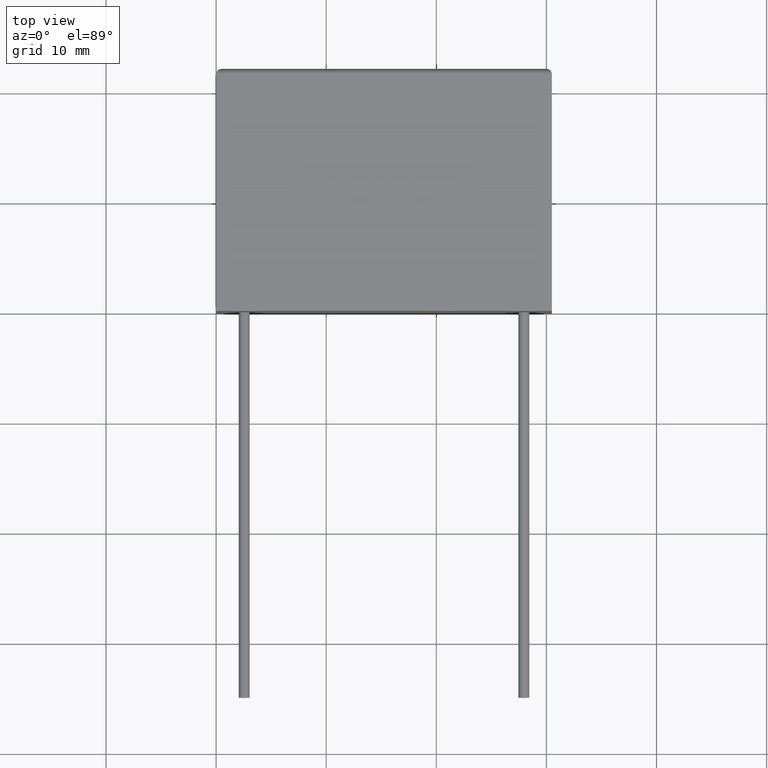
[diagram: clean part render]
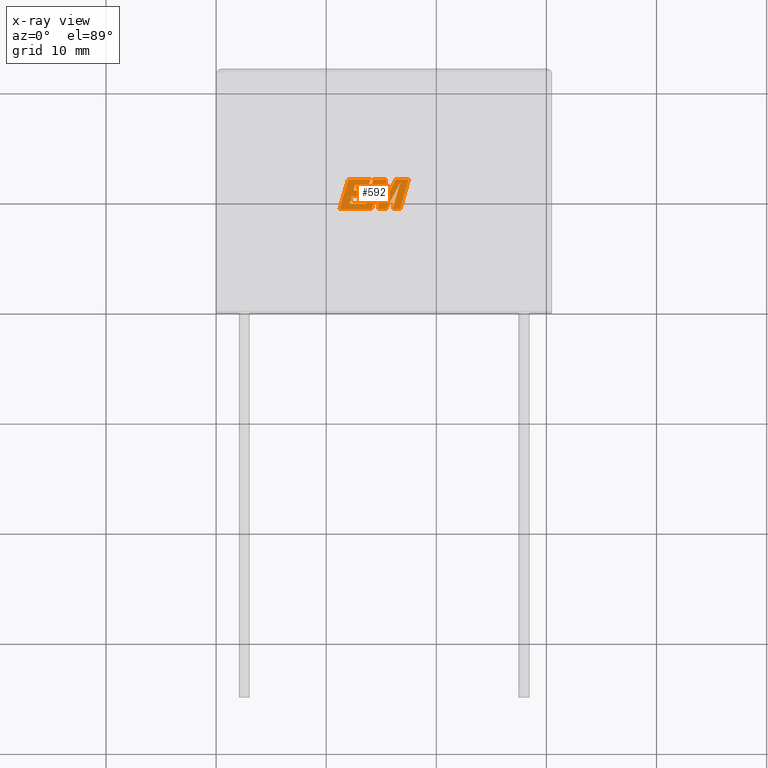
[diagram: x-ray — body ghosted, one internal face saturated and labeled with its STEP entity id]
A machine part, top view, then the same camera in x-ray: the body is ghosted and one INTERNAL B-rep face — a face not visible from any outside direction — is saturated and labeled: STEP entity #592.
In plain terms, the highlighted planar face has unit normal (0, 0, -1).
Its self-contained STEP definition (entity closure, byte-faithful):
#14 = DIRECTION ( 'NONE',  ( 0.4668459304955088200, 0.8843386665637675800, 0.0000000000000000000 ) ) ;
#17 = CARTESIAN_POINT ( 'NONE',  ( 12.13041814687692700, 9.744555796335491800, 15.30000000000000100 ) ) ;
#32 = ORIENTED_EDGE ( 'NONE', *, *, #1168, .F. ) ;
#42 = VECTOR ( 'NONE', #1255, 1000.000000000000000 ) ;
#45 = CARTESIAN_POINT ( 'NONE',  ( 16.72163530528773000, 9.224599999999998800, 15.30000000000000100 ) ) ;
#46 = LINE ( 'NONE', #535, #1789 ) ;
#60 = ORIENTED_EDGE ( 'NONE', *, *, #332, .F. ) ;
#80 = DIRECTION ( 'NONE',  ( -1.000000000000000000, 0.0000000000000000000, 0.0000000000000000000 ) ) ;
#106 = VECTOR ( 'NONE', #954, 1000.000000000000000 ) ;
#129 = CARTESIAN_POINT ( 'NONE',  ( 16.72163530528773000, 9.224599999999998800, 15.30000000000000100 ) ) ;
#165 = VECTOR ( 'NONE', #2228, 1000.000000000000000 ) ;
#169 = EDGE_CURVE ( 'NONE', #2115, #1561, #1290, .T. ) ;
#174 = VERTEX_POINT ( 'NONE', #1732 ) ;
#179 = VERTEX_POINT ( 'NONE', #982 ) ;
#187 = CARTESIAN_POINT ( 'NONE',  ( 11.98990460110053400, 11.95760467011252200, 15.30000000000000100 ) ) ;
#194 = VERTEX_POINT ( 'NONE', #187 ) ;
#245 = DIRECTION ( 'NONE',  ( -0.2762517575166415500, -0.9610853065513833600, 0.0000000000000000000 ) ) ;
#269 = EDGE_CURVE ( 'NONE', #716, #2215, #1105, .T. ) ;
#279 = LINE ( 'NONE', #715, #1075 ) ;
#282 = VERTEX_POINT ( 'NONE', #594 ) ;
#297 = CARTESIAN_POINT ( 'NONE',  ( 17.50739429965959800, 11.95760467011252200, 15.30000000000000100 ) ) ;
#318 = ORIENTED_EDGE ( 'NONE', *, *, #595, .F. ) ;
#332 = EDGE_CURVE ( 'NONE', #179, #773, #1083, .T. ) ;
#360 = DIRECTION ( 'NONE',  ( 1.000000000000000000, 1.410797975395186500E-015, 0.0000000000000000000 ) ) ;
#393 = VECTOR ( 'NONE', #1602, 1000.000000000000000 ) ;
#409 = ORIENTED_EDGE ( 'NONE', *, *, #1941, .F. ) ;
#434 = CARTESIAN_POINT ( 'NONE',  ( 13.49682907209673000, 10.42381401580202300, 15.30000000000000100 ) ) ;
#446 = CARTESIAN_POINT ( 'NONE',  ( 12.32395771051506900, 10.42381401580202300, 15.30000000000000100 ) ) ;
#447 = VECTOR ( 'NONE', #708, 1000.000000000000100 ) ;
#448 = CARTESIAN_POINT ( 'NONE',  ( 13.64114028129114900, 10.92905282770972900, 15.30000000000000100 ) ) ;
#481 = EDGE_CURVE ( 'NONE', #1561, #194, #1521, .T. ) ;
#491 = ORIENTED_EDGE ( 'NONE', *, *, #2111, .F. ) ;
#498 = CARTESIAN_POINT ( 'NONE',  ( 16.30871703926905200, 11.95760467011252200, 15.30000000000000100 ) ) ;
#504 = PLANE ( 'NONE',  #1737 ) ;
#518 = VECTOR ( 'NONE', #1455, 1000.000000000000000 ) ;
#529 = VERTEX_POINT ( 'NONE', #448 ) ;
#535 = CARTESIAN_POINT ( 'NONE',  ( 16.02713657230754400, 9.224599999999998800, 15.30000000000000100 ) ) ;
#560 = ORIENTED_EDGE ( 'NONE', *, *, #169, .F. ) ;
#592 = ADVANCED_FACE ( 'NONE', ( #707 ), #504, .T. ) ;
#594 = CARTESIAN_POINT ( 'NONE',  ( 11.20345587573266000, 9.224599999999998800, 15.30000000000000100 ) ) ;
#595 = EDGE_CURVE ( 'NONE', #773, #1935, #1920, .T. ) ;
#624 = VERTEX_POINT ( 'NONE', #297 ) ;
#681 = CARTESIAN_POINT ( 'NONE',  ( 15.44544762703744000, 11.95760467011252200, 15.30000000000000100 ) ) ;
#698 = LINE ( 'NONE', #1725, #2182 ) ;
#707 = FACE_OUTER_BOUND ( 'NONE', #970, .T. ) ;
#708 = DIRECTION ( 'NONE',  ( 0.2759782365590722800, 0.9611638845408959600, 0.0000000000000000000 ) ) ;
#715 = CARTESIAN_POINT ( 'NONE',  ( 15.43857353521400100, 9.224599999999998800, 15.30000000000000100 ) ) ;
#716 = VERTEX_POINT ( 'NONE', #2413 ) ;
#732 = LINE ( 'NONE', #1901, #1159 ) ;
#747 = ORIENTED_EDGE ( 'NONE', *, *, #1887, .F. ) ;
#773 = VERTEX_POINT ( 'NONE', #2278 ) ;
#778 = ORIENTED_EDGE ( 'NONE', *, *, #1532, .F. ) ;
#780 = EDGE_CURVE ( 'NONE', #174, #2464, #842, .T. ) ;
#788 = DIRECTION ( 'NONE',  ( 0.2732148821746286400, 0.9619530280415482500, 0.0000000000000000000 ) ) ;
#789 = CARTESIAN_POINT ( 'NONE',  ( 14.84636241446146900, 11.65772222130387300, 15.30000000000000100 ) ) ;
#819 = DIRECTION ( 'NONE',  ( -0.05596501978069497200, -0.9984327301130238000, 0.0000000000000000000 ) ) ;
#835 = VECTOR ( 'NONE', #788, 1000.000000000000100 ) ;
#842 = LINE ( 'NONE', #935, #1355 ) ;
#874 = VERTEX_POINT ( 'NONE', #1844 ) ;
#885 = VECTOR ( 'NONE', #819, 1000.000000000000100 ) ;
#902 = VERTEX_POINT ( 'NONE', #1872 ) ;
#910 = DIRECTION ( 'NONE',  ( 1.000000000000000000, -2.014110522645507200E-015, 0.0000000000000000000 ) ) ;
#916 = LINE ( 'NONE', #2381, #1873 ) ;
#920 = EDGE_CURVE ( 'NONE', #1677, #624, #1918, .T. ) ;
#928 = VECTOR ( 'NONE', #245, 1000.000000000000100 ) ;
#935 = CARTESIAN_POINT ( 'NONE',  ( 12.46810271999845600, 10.92905282770972900, 15.30000000000000100 ) ) ;
#954 = DIRECTION ( 'NONE',  ( 0.2740217765954059400, 0.9617234872620598100, 0.0000000000000000000 ) ) ;
#967 = CARTESIAN_POINT ( 'NONE',  ( 14.14774192864402900, 9.224599999999998800, 15.30000000000000100 ) ) ;
#970 = EDGE_LOOP ( 'NONE', ( #1284, #2088, #1433, #2196, #2427, #409, #2168, #491, #747, #2392, #1439, #560, #1796, #1144, #2338, #778, #2110, #1716, #32, #1705, #2404, #318, #60 ) ) ;
#982 = CARTESIAN_POINT ( 'NONE',  ( 16.30871703926905200, 11.95760467011252200, 15.30000000000000100 ) ) ;
#1008 = LINE ( 'NONE', #434, #2154 ) ;
#1020 = CARTESIAN_POINT ( 'NONE',  ( 13.64544485380194100, 9.744555796335491800, 15.30000000000000100 ) ) ;
#1058 = VERTEX_POINT ( 'NONE', #17 ) ;
#1075 = VECTOR ( 'NONE', #14, 1000.000000000000000 ) ;
#1083 = LINE ( 'NONE', #498, #518 ) ;
#1088 = DIRECTION ( 'NONE',  ( 0.05375259206908614100, 0.9985542843760946100, 0.0000000000000000000 ) ) ;
#1093 = LINE ( 'NONE', #1975, #885 ) ;
#1105 = LINE ( 'NONE', #2166, #928 ) ;
#1136 = VECTOR ( 'NONE', #2071, 1000.000000000000200 ) ;
#1144 = ORIENTED_EDGE ( 'NONE', *, *, #780, .F. ) ;
#1149 = DIRECTION ( 'NONE',  ( 1.000000000000000000, 0.0000000000000000000, 0.0000000000000000000 ) ) ;
#1159 = VECTOR ( 'NONE', #1149, 1000.000000000000000 ) ;
#1164 = CARTESIAN_POINT ( 'NONE',  ( 12.13041814687692700, 9.744555796335491800, 15.30000000000000100 ) ) ;
#1168 = EDGE_CURVE ( 'NONE', #2215, #1058, #1668, .T. ) ;
#1223 = VECTOR ( 'NONE', #2388, 1000.000000000000000 ) ;
#1224 = VECTOR ( 'NONE', #1088, 1000.000000000000000 ) ;
#1228 = CARTESIAN_POINT ( 'NONE',  ( 14.00895686204292000, 11.95760467011252200, 15.30000000000000100 ) ) ;
#1235 = VERTEX_POINT ( 'NONE', #1894 ) ;
#1255 = DIRECTION ( 'NONE',  ( -1.000000000000000000, 0.0000000000000000000, 0.0000000000000000000 ) ) ;
#1276 = EDGE_CURVE ( 'NONE', #902, #874, #279, .T. ) ;
#1284 = ORIENTED_EDGE ( 'NONE', *, *, #2371, .F. ) ;
#1290 = LINE ( 'NONE', #1943, #835 ) ;
#1308 = CARTESIAN_POINT ( 'NONE',  ( 12.32395771051506900, 10.42381401580202300, 15.30000000000000100 ) ) ;
#1355 = VECTOR ( 'NONE', #1728, 1000.000000000000100 ) ;
#1398 = EDGE_CURVE ( 'NONE', #1534, #1677, #46, .T. ) ;
#1431 = EDGE_CURVE ( 'NONE', #529, #174, #2482, .T. ) ;
#1433 = ORIENTED_EDGE ( 'NONE', *, *, #1398, .F. ) ;
#1439 = ORIENTED_EDGE ( 'NONE', *, *, #481, .F. ) ;
#1455 = DIRECTION ( 'NONE',  ( -0.4443210308329521600, -0.8958676361826800600, 0.0000000000000000000 ) ) ;
#1457 = CARTESIAN_POINT ( 'NONE',  ( 13.64114028129114900, 10.92905282770972900, 15.30000000000000100 ) ) ;
#1469 = CARTESIAN_POINT ( 'NONE',  ( 15.34034408245423200, 10.00511101898241300, 15.30000000000000100 ) ) ;
#1491 = DIRECTION ( 'NONE',  ( 1.000000000000000000, 0.0000000000000000000, 0.0000000000000000000 ) ) ;
#1514 = LINE ( 'NONE', #1164, #106 ) ;
#1521 = LINE ( 'NONE', #1228, #1606 ) ;
#1529 = VERTEX_POINT ( 'NONE', #789 ) ;
#1532 = EDGE_CURVE ( 'NONE', #2080, #529, #1008, .T. ) ;
#1534 = VERTEX_POINT ( 'NONE', #1573 ) ;
#1556 = VERTEX_POINT ( 'NONE', #1308 ) ;
#1561 = VERTEX_POINT ( 'NONE', #1751 ) ;
#1573 = CARTESIAN_POINT ( 'NONE',  ( 16.02713657230754400, 9.224599999999998800, 15.30000000000000100 ) ) ;
#1574 = EDGE_CURVE ( 'NONE', #194, #282, #698, .T. ) ;
#1602 = DIRECTION ( 'NONE',  ( 1.000000000000000000, 0.0000000000000000000, 0.0000000000000000000 ) ) ;
#1604 = EDGE_CURVE ( 'NONE', #1058, #1556, #1514, .T. ) ;
#1606 = VECTOR ( 'NONE', #1631, 1000.000000000000000 ) ;
#1620 = CARTESIAN_POINT ( 'NONE',  ( 12.61602046292478200, 11.43739126422981500, 15.30000000000000100 ) ) ;
#1631 = DIRECTION ( 'NONE',  ( -1.000000000000000000, 0.0000000000000000000, 0.0000000000000000000 ) ) ;
#1633 = VECTOR ( 'NONE', #80, 1000.000000000000000 ) ;
#1639 = EDGE_CURVE ( 'NONE', #1556, #2080, #2481, .T. ) ;
#1668 = LINE ( 'NONE', #1765, #1223 ) ;
#1677 = VERTEX_POINT ( 'NONE', #45 ) ;
#1687 = CARTESIAN_POINT ( 'NONE',  ( 13.86120531882747800, 11.43739126422981500, 15.30000000000000100 ) ) ;
#1692 = EDGE_CURVE ( 'NONE', #874, #1534, #916, .T. ) ;
#1705 = ORIENTED_EDGE ( 'NONE', *, *, #269, .F. ) ;
#1716 = ORIENTED_EDGE ( 'NONE', *, *, #1604, .F. ) ;
#1725 = CARTESIAN_POINT ( 'NONE',  ( 11.98990460110053400, 11.95760467011252200, 15.30000000000000100 ) ) ;
#1728 = DIRECTION ( 'NONE',  ( 0.2793947940878305800, 0.9601763114327590600, 0.0000000000000000000 ) ) ;
#1732 = CARTESIAN_POINT ( 'NONE',  ( 12.46810271999845600, 10.92905282770972900, 15.30000000000000100 ) ) ;
#1737 = AXIS2_PLACEMENT_3D ( 'NONE', #2236, #2253, #1864 ) ;
#1751 = CARTESIAN_POINT ( 'NONE',  ( 14.00895686204292000, 11.95760467011252200, 15.30000000000000100 ) ) ;
#1765 = CARTESIAN_POINT ( 'NONE',  ( 13.64544485380194100, 9.744555796335491800, 15.30000000000000100 ) ) ;
#1788 = EDGE_CURVE ( 'NONE', #1935, #716, #2065, .T. ) ;
#1789 = VECTOR ( 'NONE', #360, 1000.000000000000000 ) ;
#1796 = ORIENTED_EDGE ( 'NONE', *, *, #2296, .F. ) ;
#1798 = VERTEX_POINT ( 'NONE', #2407 ) ;
#1844 = CARTESIAN_POINT ( 'NONE',  ( 16.72921401211593600, 11.66943930093434600, 15.30000000000000100 ) ) ;
#1864 = DIRECTION ( 'NONE',  ( -1.000000000000000000, 0.0000000000000000000, 0.0000000000000000000 ) ) ;
#1870 = LINE ( 'NONE', #1926, #2268 ) ;
#1872 = CARTESIAN_POINT ( 'NONE',  ( 15.43857353521400100, 9.224599999999998800, 15.30000000000000100 ) ) ;
#1873 = VECTOR ( 'NONE', #1988, 1000.000000000000100 ) ;
#1887 = EDGE_CURVE ( 'NONE', #282, #1235, #1870, .T. ) ;
#1894 = CARTESIAN_POINT ( 'NONE',  ( 14.14774192864402900, 9.224599999999998800, 15.30000000000000100 ) ) ;
#1901 = CARTESIAN_POINT ( 'NONE',  ( 12.61602046292478200, 11.43739126422981500, 15.30000000000000100 ) ) ;
#1902 = DIRECTION ( 'NONE',  ( -0.2765379750249970000, -0.9610029908221274800, 0.0000000000000000000 ) ) ;
#1912 = CARTESIAN_POINT ( 'NONE',  ( 14.70997893149140800, 9.224599999999998800, 15.30000000000000100 ) ) ;
#1918 = LINE ( 'NONE', #129, #1136 ) ;
#1920 = LINE ( 'NONE', #1469, #1224 ) ;
#1926 = CARTESIAN_POINT ( 'NONE',  ( 13.66127537410956400, 9.224599999999998800, 15.30000000000000100 ) ) ;
#1935 = VERTEX_POINT ( 'NONE', #681 ) ;
#1941 = EDGE_CURVE ( 'NONE', #1798, #902, #2209, .T. ) ;
#1943 = CARTESIAN_POINT ( 'NONE',  ( 13.86120531882747800, 11.43739126422981500, 15.30000000000000100 ) ) ;
#1975 = CARTESIAN_POINT ( 'NONE',  ( 14.84636241446146900, 11.65772222130387300, 15.30000000000000100 ) ) ;
#1988 = DIRECTION ( 'NONE',  ( -0.2760118818968581000, -0.9611542233438683500, 0.0000000000000000000 ) ) ;
#2007 = DIRECTION ( 'NONE',  ( 0.2746459304916891200, 0.9615454294334481200, 0.0000000000000000000 ) ) ;
#2028 = CARTESIAN_POINT ( 'NONE',  ( 17.50739429965959800, 11.95760467011252200, 15.30000000000000100 ) ) ;
#2065 = LINE ( 'NONE', #2458, #42 ) ;
#2071 = DIRECTION ( 'NONE',  ( 0.2763139702539114100, 0.9610674221107072800, 0.0000000000000000000 ) ) ;
#2080 = VERTEX_POINT ( 'NONE', #2298 ) ;
#2088 = ORIENTED_EDGE ( 'NONE', *, *, #920, .F. ) ;
#2110 = ORIENTED_EDGE ( 'NONE', *, *, #1639, .F. ) ;
#2111 = EDGE_CURVE ( 'NONE', #1235, #1529, #2410, .T. ) ;
#2115 = VERTEX_POINT ( 'NONE', #1687 ) ;
#2150 = VECTOR ( 'NONE', #1491, 1000.000000000000000 ) ;
#2154 = VECTOR ( 'NONE', #2007, 1000.000000000000100 ) ;
#2166 = CARTESIAN_POINT ( 'NONE',  ( 14.28155762827025300, 11.95760467011252200, 15.30000000000000100 ) ) ;
#2168 = ORIENTED_EDGE ( 'NONE', *, *, #2181, .F. ) ;
#2181 = EDGE_CURVE ( 'NONE', #1529, #1798, #1093, .T. ) ;
#2182 = VECTOR ( 'NONE', #1902, 1000.000000000000200 ) ;
#2196 = ORIENTED_EDGE ( 'NONE', *, *, #1692, .F. ) ;
#2209 = LINE ( 'NONE', #1912, #2150 ) ;
#2215 = VERTEX_POINT ( 'NONE', #1020 ) ;
#2228 = DIRECTION ( 'NONE',  ( -1.000000000000000000, 0.0000000000000000000, 0.0000000000000000000 ) ) ;
#2236 = CARTESIAN_POINT ( 'NONE',  ( 0.04135901642317307800, 2.316512659225987900, 15.30000000000000100 ) ) ;
#2253 = DIRECTION ( 'NONE',  ( 0.0000000000000000000, 0.0000000000000000000, -1.000000000000000000 ) ) ;
#2268 = VECTOR ( 'NONE', #910, 1000.000000000000000 ) ;
#2269 = LINE ( 'NONE', #2028, #165 ) ;
#2278 = CARTESIAN_POINT ( 'NONE',  ( 15.34034408245423200, 10.00511101898241300, 15.30000000000000100 ) ) ;
#2296 = EDGE_CURVE ( 'NONE', #2464, #2115, #732, .T. ) ;
#2298 = CARTESIAN_POINT ( 'NONE',  ( 13.49682907209673000, 10.42381401580202300, 15.30000000000000100 ) ) ;
#2338 = ORIENTED_EDGE ( 'NONE', *, *, #1431, .F. ) ;
#2371 = EDGE_CURVE ( 'NONE', #624, #179, #2269, .T. ) ;
#2381 = CARTESIAN_POINT ( 'NONE',  ( 16.72921401211593600, 11.66943930093434600, 15.30000000000000100 ) ) ;
#2388 = DIRECTION ( 'NONE',  ( -1.000000000000000000, 0.0000000000000000000, 0.0000000000000000000 ) ) ;
#2392 = ORIENTED_EDGE ( 'NONE', *, *, #1574, .F. ) ;
#2404 = ORIENTED_EDGE ( 'NONE', *, *, #1788, .F. ) ;
#2407 = CARTESIAN_POINT ( 'NONE',  ( 14.70997893149140800, 9.224599999999998800, 15.30000000000000100 ) ) ;
#2410 = LINE ( 'NONE', #967, #447 ) ;
#2413 = CARTESIAN_POINT ( 'NONE',  ( 14.28155762827025300, 11.95760467011252200, 15.30000000000000100 ) ) ;
#2427 = ORIENTED_EDGE ( 'NONE', *, *, #1276, .F. ) ;
#2458 = CARTESIAN_POINT ( 'NONE',  ( 15.44544762703744000, 11.95760467011252200, 15.30000000000000100 ) ) ;
#2464 = VERTEX_POINT ( 'NONE', #1620 ) ;
#2481 = LINE ( 'NONE', #446, #393 ) ;
#2482 = LINE ( 'NONE', #1457, #1633 ) ;